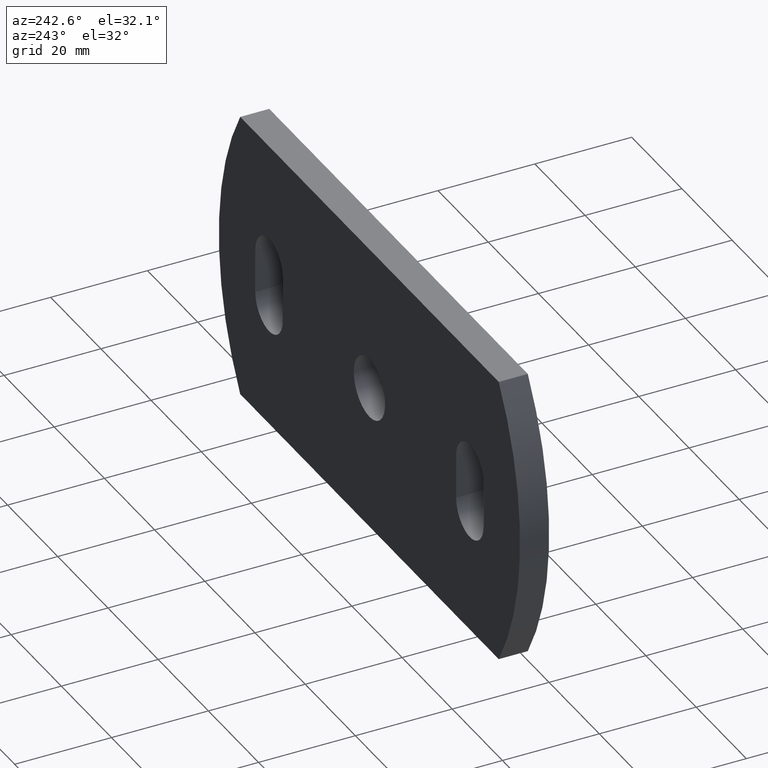
[diagram: clean part render]
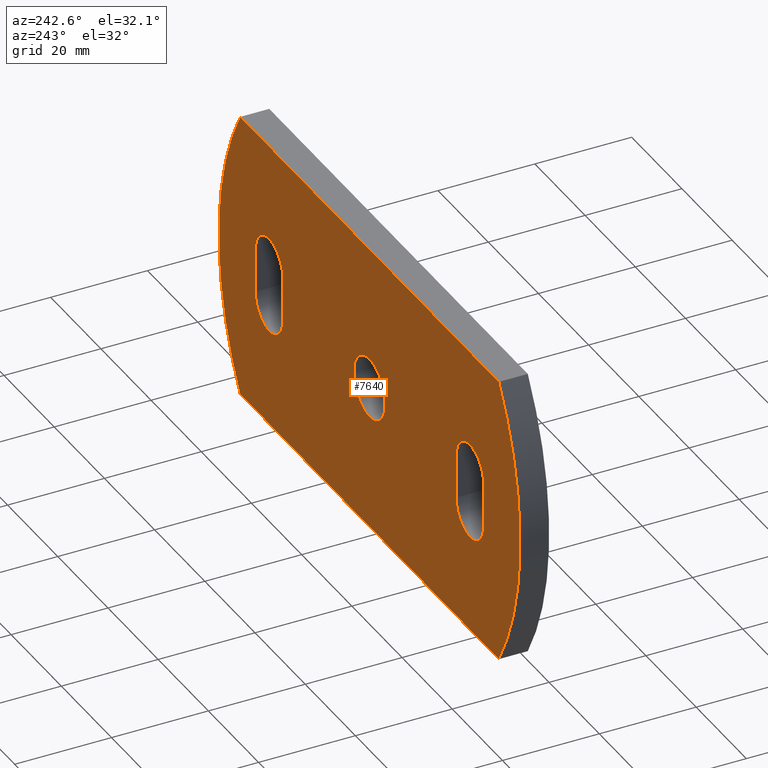
[diagram: same view with one face highlighted and labeled with its STEP entity id]
A machine part, auxiliary view. The second image highlights one B-rep face of the part: STEP entity #7640.
In plain terms, the highlighted planar face has unit normal (0, -1, 0).
Its self-contained STEP definition (entity closure, byte-faithful):
#47 = CARTESIAN_POINT ( 'NONE',  ( -51.49999999999995700, 6.000000000000000000, -30.00000000000001800 ) ) ;
#185 = DIRECTION ( 'NONE',  ( 0.0000000000000000000, 1.000000000000000000, 0.0000000000000000000 ) ) ;
#291 = DIRECTION ( 'NONE',  ( 0.0000000000000000000, 1.000000000000000000, 0.0000000000000000000 ) ) ;
#294 = VERTEX_POINT ( 'NONE', #8967 ) ;
#314 = DIRECTION ( 'NONE',  ( 0.0000000000000000000, 0.0000000000000000000, 1.000000000000000000 ) ) ;
#380 = CIRCLE ( 'NONE', #1598, 5.499999999999997300 ) ;
#448 = CARTESIAN_POINT ( 'NONE',  ( -51.49999999999997200, 6.000000000000000000, 29.99999999999998200 ) ) ;
#562 = EDGE_CURVE ( 'NONE', #3793, #8861, #3351, .T. ) ;
#640 = CIRCLE ( 'NONE', #1089, 5.499999999999998200 ) ;
#746 = CARTESIAN_POINT ( 'NONE',  ( 51.50000000000002800, 6.000000000000000000, 30.00000000000001800 ) ) ;
#789 = ORIENTED_EDGE ( 'NONE', *, *, #7083, .F. ) ;
#796 = AXIS2_PLACEMENT_3D ( 'NONE', #9089, #291, #8276 ) ;
#811 = CIRCLE ( 'NONE', #796, 57.19117647058804000 ) ;
#920 = VERTEX_POINT ( 'NONE', #7884 ) ;
#1050 = LINE ( 'NONE', #9423, #5281 ) ;
#1089 = AXIS2_PLACEMENT_3D ( 'NONE', #8294, #2607, #7678 ) ;
#1150 = EDGE_CURVE ( 'NONE', #7783, #8986, #8648, .T. ) ;
#1235 = ORIENTED_EDGE ( 'NONE', *, *, #2058, .F. ) ;
#1335 = ORIENTED_EDGE ( 'NONE', *, *, #2101, .T. ) ;
#1341 = ORIENTED_EDGE ( 'NONE', *, *, #8922, .F. ) ;
#1479 = CARTESIAN_POINT ( 'NONE',  ( 2.808823529411593100, 6.000000000000000000, 0.0000000000000000000 ) ) ;
#1482 = CIRCLE ( 'NONE', #2444, 6.250000000000000000 ) ;
#1587 = DIRECTION ( 'NONE',  ( 0.0000000000000000000, 0.0000000000000000000, 1.000000000000000000 ) ) ;
#1598 = AXIS2_PLACEMENT_3D ( 'NONE', #5649, #6402, #6370 ) ;
#1708 = VERTEX_POINT ( 'NONE', #1802 ) ;
#1711 = CARTESIAN_POINT ( 'NONE',  ( 45.50000000000000000, 6.000000000000000000, 4.500000000000007100 ) ) ;
#1772 = VERTEX_POINT ( 'NONE', #2036 ) ;
#1802 = CARTESIAN_POINT ( 'NONE',  ( -45.50000000000000000, 6.000000000000000000, 4.499999999999991100 ) ) ;
#1869 = FACE_BOUND ( 'NONE', #2947, .T. ) ;
#1939 = VERTEX_POINT ( 'NONE', #3062 ) ;
#2036 = CARTESIAN_POINT ( 'NONE',  ( -34.50000000000000000, 6.000000000000000000, -4.499999999999991100 ) ) ;
#2058 = EDGE_CURVE ( 'NONE', #5700, #3793, #5851, .T. ) ;
#2101 = EDGE_CURVE ( 'NONE', #9381, #3112, #811, .T. ) ;
#2153 = ORIENTED_EDGE ( 'NONE', *, *, #2517, .F. ) ;
#2178 = EDGE_CURVE ( 'NONE', #1939, #9113, #1482, .T. ) ;
#2225 = ORIENTED_EDGE ( 'NONE', *, *, #2178, .F. ) ;
#2444 = AXIS2_PLACEMENT_3D ( 'NONE', #5516, #4038, #5578 ) ;
#2517 = EDGE_CURVE ( 'NONE', #5772, #4174, #640, .T. ) ;
#2607 = DIRECTION ( 'NONE',  ( 0.0000000000000000000, 1.000000000000000000, 0.0000000000000000000 ) ) ;
#2630 = CARTESIAN_POINT ( 'NONE',  ( -40.00000000000000000, 6.000000000000000000, 9.999999999999989300 ) ) ;
#2873 = CARTESIAN_POINT ( 'NONE',  ( -51.49999999999997200, 6.000000000000000000, 29.99999999999998200 ) ) ;
#2883 = LINE ( 'NONE', #6406, #8181 ) ;
#2947 = EDGE_LOOP ( 'NONE', ( #2225, #8311 ) ) ;
#2968 = CARTESIAN_POINT ( 'NONE',  ( -34.50000000000000000, 6.000000000000000000, 4.499999999999991100 ) ) ;
#3062 = CARTESIAN_POINT ( 'NONE',  ( 0.0000000000000000000, 6.000000000000000000, 6.250000000000000000 ) ) ;
#3091 = CARTESIAN_POINT ( 'NONE',  ( 34.50000000000000000, 6.000000000000000000, 4.500000000000007100 ) ) ;
#3112 = VERTEX_POINT ( 'NONE', #2873 ) ;
#3256 = AXIS2_PLACEMENT_3D ( 'NONE', #7181, #4934, #6435 ) ;
#3351 = LINE ( 'NONE', #8725, #8962 ) ;
#3514 = DIRECTION ( 'NONE',  ( 0.0000000000000000000, 0.0000000000000000000, 1.000000000000000000 ) ) ;
#3560 = EDGE_LOOP ( 'NONE', ( #5213, #8684, #1335, #5721 ) ) ;
#3612 = ORIENTED_EDGE ( 'NONE', *, *, #6215, .F. ) ;
#3793 = VERTEX_POINT ( 'NONE', #1711 ) ;
#3806 = DIRECTION ( 'NONE',  ( -1.000000000000000000, -0.0000000000000000000, -3.368395098984091700E-016 ) ) ;
#3849 = CARTESIAN_POINT ( 'NONE',  ( 0.0000000000000000000, 6.000000000000000000, 0.0000000000000000000 ) ) ;
#3904 = AXIS2_PLACEMENT_3D ( 'NONE', #4400, #5113, #5174 ) ;
#4038 = DIRECTION ( 'NONE',  ( 0.0000000000000000000, 1.000000000000000000, 0.0000000000000000000 ) ) ;
#4174 = VERTEX_POINT ( 'NONE', #2968 ) ;
#4400 = CARTESIAN_POINT ( 'NONE',  ( 40.00000000000000000, 6.000000000000000000, -4.499999999999993800 ) ) ;
#4518 = DIRECTION ( 'NONE',  ( 0.0000000000000000000, 0.0000000000000000000, -1.000000000000000000 ) ) ;
#4538 = AXIS2_PLACEMENT_3D ( 'NONE', #8360, #6063, #314 ) ;
#4662 = AXIS2_PLACEMENT_3D ( 'NONE', #1479, #8763, #6634 ) ;
#4934 = DIRECTION ( 'NONE',  ( 0.0000000000000000000, 1.000000000000000000, 0.0000000000000000000 ) ) ;
#4958 = FACE_BOUND ( 'NONE', #7745, .T. ) ;
#5028 = DIRECTION ( 'NONE',  ( -0.0000000000000000000, -0.0000000000000000000, -1.000000000000000000 ) ) ;
#5113 = DIRECTION ( 'NONE',  ( 0.0000000000000000000, 1.000000000000000000, 0.0000000000000000000 ) ) ;
#5174 = DIRECTION ( 'NONE',  ( 0.0000000000000000000, 0.0000000000000000000, 1.000000000000000000 ) ) ;
#5213 = ORIENTED_EDGE ( 'NONE', *, *, #8983, .T. ) ;
#5235 = CARTESIAN_POINT ( 'NONE',  ( -51.49999999999994300, 6.000000000000000000, -30.00000000000002800 ) ) ;
#5281 = VECTOR ( 'NONE', #5028, 1000.000000000000000 ) ;
#5284 = CARTESIAN_POINT ( 'NONE',  ( 34.50000000000000000, 6.000000000000000000, -4.500000000000005300 ) ) ;
#5343 = AXIS2_PLACEMENT_3D ( 'NONE', #8915, #9007, #4518 ) ;
#5400 = EDGE_CURVE ( 'NONE', #1708, #5772, #5906, .T. ) ;
#5404 = LINE ( 'NONE', #47, #7145 ) ;
#5408 = DIRECTION ( 'NONE',  ( 0.0000000000000000000, 0.0000000000000000000, 1.000000000000000000 ) ) ;
#5414 = EDGE_LOOP ( 'NONE', ( #5658, #1341, #7708, #1235, #789 ) ) ;
#5484 = DIRECTION ( 'NONE',  ( 0.0000000000000000000, 1.000000000000000000, 0.0000000000000000000 ) ) ;
#5516 = CARTESIAN_POINT ( 'NONE',  ( 0.0000000000000000000, 6.000000000000000000, 0.0000000000000000000 ) ) ;
#5578 = DIRECTION ( 'NONE',  ( 0.0000000000000000000, 0.0000000000000000000, 1.000000000000000000 ) ) ;
#5638 = ORIENTED_EDGE ( 'NONE', *, *, #8785, .F. ) ;
#5649 = CARTESIAN_POINT ( 'NONE',  ( 40.00000000000000000, 6.000000000000000000, 4.500000000000008000 ) ) ;
#5658 = ORIENTED_EDGE ( 'NONE', *, *, #1150, .F. ) ;
#5700 = VERTEX_POINT ( 'NONE', #8616 ) ;
#5721 = ORIENTED_EDGE ( 'NONE', *, *, #6430, .T. ) ;
#5772 = VERTEX_POINT ( 'NONE', #2630 ) ;
#5851 = CIRCLE ( 'NONE', #4538, 5.499999999999997300 ) ;
#5906 = CIRCLE ( 'NONE', #3256, 5.499999999999998200 ) ;
#6063 = DIRECTION ( 'NONE',  ( 0.0000000000000000000, 1.000000000000000000, 0.0000000000000000000 ) ) ;
#6128 = ORIENTED_EDGE ( 'NONE', *, *, #8733, .F. ) ;
#6133 = EDGE_CURVE ( 'NONE', #920, #9381, #5404, .T. ) ;
#6215 = EDGE_CURVE ( 'NONE', #1772, #294, #6911, .T. ) ;
#6237 = DIRECTION ( 'NONE',  ( 0.0000000000000000000, 0.0000000000000000000, 1.000000000000000000 ) ) ;
#6316 = AXIS2_PLACEMENT_3D ( 'NONE', #3849, #185, #1587 ) ;
#6346 = VECTOR ( 'NONE', #9206, 1000.000000000000000 ) ;
#6370 = DIRECTION ( 'NONE',  ( 0.0000000000000000000, 0.0000000000000000000, 1.000000000000000000 ) ) ;
#6402 = DIRECTION ( 'NONE',  ( 0.0000000000000000000, 1.000000000000000000, 0.0000000000000000000 ) ) ;
#6406 = CARTESIAN_POINT ( 'NONE',  ( -45.50000000000000000, 6.000000000000000000, -4.499999999999992900 ) ) ;
#6430 = EDGE_CURVE ( 'NONE', #3112, #6682, #6683, .T. ) ;
#6435 = DIRECTION ( 'NONE',  ( 0.0000000000000000000, 0.0000000000000000000, 1.000000000000000000 ) ) ;
#6552 = CIRCLE ( 'NONE', #5343, 57.19117647058841000 ) ;
#6634 = DIRECTION ( 'NONE',  ( 0.0000000000000000000, -0.0000000000000000000, -1.000000000000000000 ) ) ;
#6682 = VERTEX_POINT ( 'NONE', #746 ) ;
#6683 = LINE ( 'NONE', #448, #6346 ) ;
#6783 = CIRCLE ( 'NONE', #3904, 5.499999999999998200 ) ;
#6800 = FACE_OUTER_BOUND ( 'NONE', #3560, .T. ) ;
#6875 = CARTESIAN_POINT ( 'NONE',  ( 7.654042494670957600E-016, 6.000000000000000000, -6.250000000000000000 ) ) ;
#6901 = CIRCLE ( 'NONE', #6316, 6.250000000000000000 ) ;
#6907 = CARTESIAN_POINT ( 'NONE',  ( -40.00000000000000000, 6.000000000000000000, -4.500000000000007100 ) ) ;
#6911 = CIRCLE ( 'NONE', #9152, 5.499999999999998200 ) ;
#6963 = CARTESIAN_POINT ( 'NONE',  ( 34.50000000000000000, 6.000000000000000000, -4.500000000000005300 ) ) ;
#7083 = EDGE_CURVE ( 'NONE', #8986, #5700, #380, .T. ) ;
#7128 = ORIENTED_EDGE ( 'NONE', *, *, #5400, .F. ) ;
#7145 = VECTOR ( 'NONE', #3806, 1000.000000000000000 ) ;
#7181 = CARTESIAN_POINT ( 'NONE',  ( -40.00000000000000000, 6.000000000000000000, 4.499999999999992000 ) ) ;
#7640 = ADVANCED_FACE ( 'NONE', ( #8518, #4958, #1869, #6800 ), #9505, .F. ) ;
#7678 = DIRECTION ( 'NONE',  ( 0.0000000000000000000, 0.0000000000000000000, 1.000000000000000000 ) ) ;
#7708 = ORIENTED_EDGE ( 'NONE', *, *, #562, .F. ) ;
#7743 = EDGE_CURVE ( 'NONE', #9113, #1939, #6901, .T. ) ;
#7745 = EDGE_LOOP ( 'NONE', ( #6128, #3612, #5638, #2153, #7128 ) ) ;
#7783 = VERTEX_POINT ( 'NONE', #5284 ) ;
#7884 = CARTESIAN_POINT ( 'NONE',  ( 51.50000000000003600, 6.000000000000000000, -29.99999999999998200 ) ) ;
#8028 = CARTESIAN_POINT ( 'NONE',  ( 45.50000000000000000, 6.000000000000000000, -4.500000000000007100 ) ) ;
#8181 = VECTOR ( 'NONE', #3514, 1000.000000000000000 ) ;
#8276 = DIRECTION ( 'NONE',  ( 0.0000000000000000000, 0.0000000000000000000, 1.000000000000000000 ) ) ;
#8294 = CARTESIAN_POINT ( 'NONE',  ( -40.00000000000000000, 6.000000000000000000, 4.499999999999992000 ) ) ;
#8311 = ORIENTED_EDGE ( 'NONE', *, *, #7743, .F. ) ;
#8360 = CARTESIAN_POINT ( 'NONE',  ( 40.00000000000000000, 6.000000000000000000, 4.500000000000008000 ) ) ;
#8518 = FACE_BOUND ( 'NONE', #5414, .T. ) ;
#8616 = CARTESIAN_POINT ( 'NONE',  ( 40.00000000000000000, 6.000000000000000000, 10.00000000000000500 ) ) ;
#8648 = LINE ( 'NONE', #6963, #8664 ) ;
#8664 = VECTOR ( 'NONE', #5408, 1000.000000000000000 ) ;
#8684 = ORIENTED_EDGE ( 'NONE', *, *, #6133, .T. ) ;
#8725 = CARTESIAN_POINT ( 'NONE',  ( 45.50000000000000000, 6.000000000000000000, -4.500000000000007100 ) ) ;
#8733 = EDGE_CURVE ( 'NONE', #294, #1708, #2883, .T. ) ;
#8763 = DIRECTION ( 'NONE',  ( 0.0000000000000000000, -1.000000000000000000, 0.0000000000000000000 ) ) ;
#8785 = EDGE_CURVE ( 'NONE', #4174, #1772, #1050, .T. ) ;
#8861 = VERTEX_POINT ( 'NONE', #8028 ) ;
#8915 = CARTESIAN_POINT ( 'NONE',  ( 2.808823529411593100, 6.000000000000000000, 0.0000000000000000000 ) ) ;
#8922 = EDGE_CURVE ( 'NONE', #8861, #7783, #6783, .T. ) ;
#8962 = VECTOR ( 'NONE', #9380, 1000.000000000000000 ) ;
#8967 = CARTESIAN_POINT ( 'NONE',  ( -45.50000000000000000, 6.000000000000000000, -4.499999999999992900 ) ) ;
#8983 = EDGE_CURVE ( 'NONE', #6682, #920, #6552, .T. ) ;
#8986 = VERTEX_POINT ( 'NONE', #3091 ) ;
#9007 = DIRECTION ( 'NONE',  ( 0.0000000000000000000, 1.000000000000000000, -0.0000000000000000000 ) ) ;
#9089 = CARTESIAN_POINT ( 'NONE',  ( -2.808823529411953700, 6.000000000000000000, 0.0000000000000000000 ) ) ;
#9113 = VERTEX_POINT ( 'NONE', #6875 ) ;
#9152 = AXIS2_PLACEMENT_3D ( 'NONE', #6907, #5484, #6237 ) ;
#9206 = DIRECTION ( 'NONE',  ( 1.000000000000000000, 0.0000000000000000000, 3.368395098984091700E-016 ) ) ;
#9380 = DIRECTION ( 'NONE',  ( -0.0000000000000000000, -0.0000000000000000000, -1.000000000000000000 ) ) ;
#9381 = VERTEX_POINT ( 'NONE', #5235 ) ;
#9423 = CARTESIAN_POINT ( 'NONE',  ( -34.50000000000000000, 6.000000000000000000, -4.499999999999991100 ) ) ;
#9505 = PLANE ( 'NONE',  #4662 ) ;